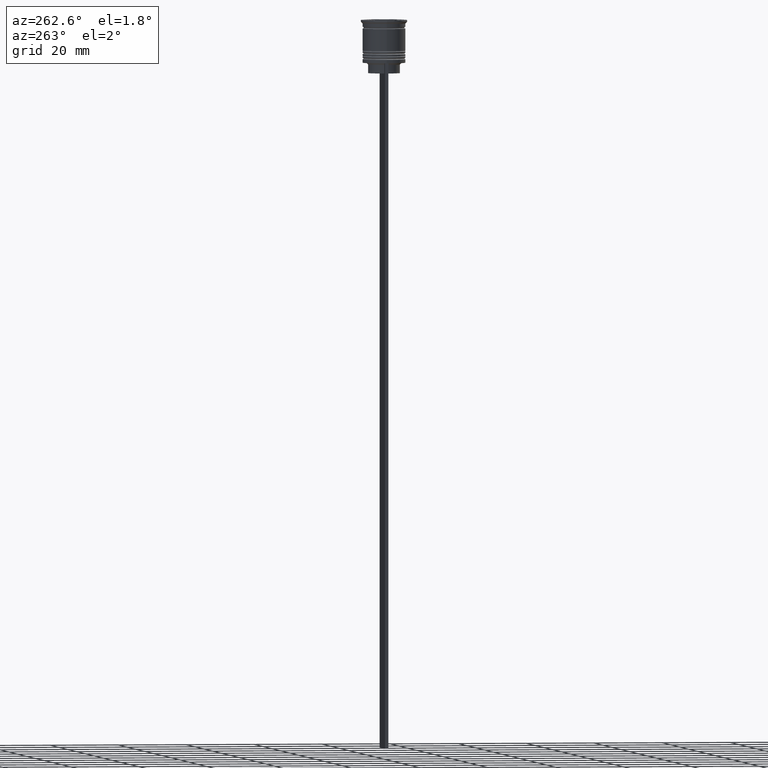
[diagram: clean part render]
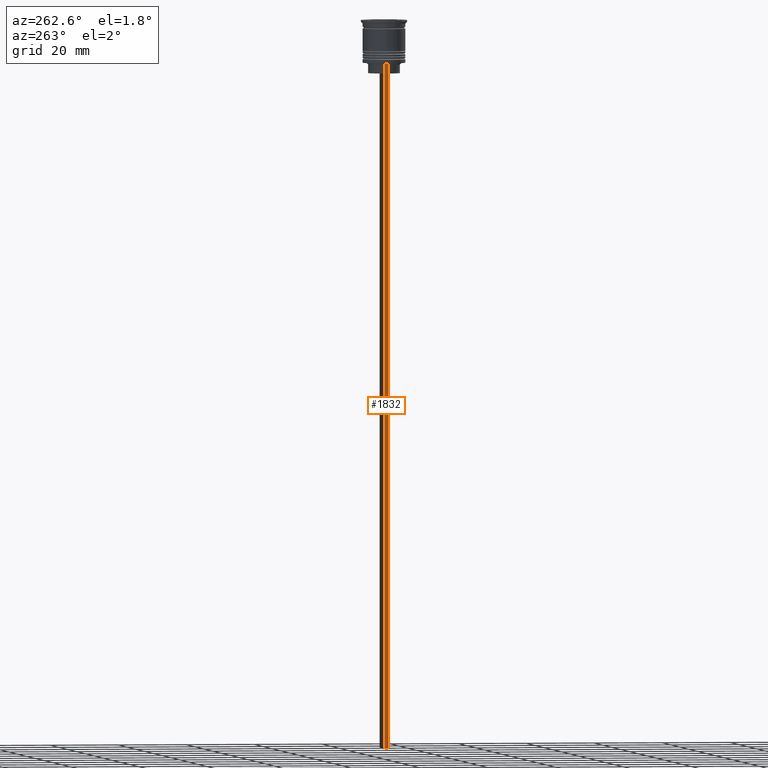
[diagram: same view with one face highlighted and labeled with its STEP entity id]
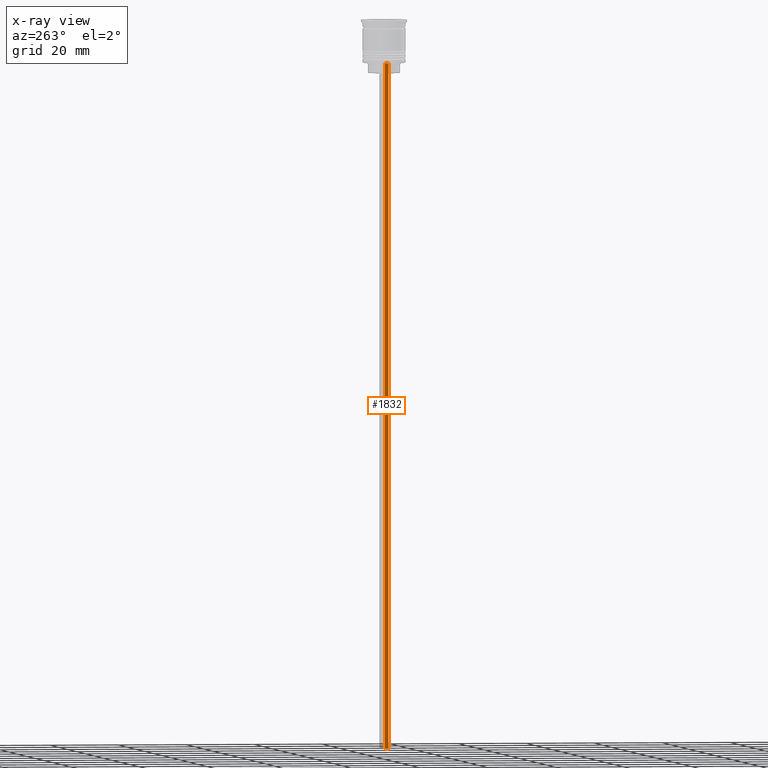
[diagram: x-ray of the same camera — body ghosted, the highlighted face saturated]
A machine part, auxiliary view. The second image highlights one B-rep face of the part: STEP entity #1832.
The next image is the same camera in x-ray: the body ghosted, the highlighted face saturated — about 0% of this face is hidden behind the body in this view.
In plain terms, the highlighted planar face has unit normal (-1, 0, 0).
Its self-contained STEP definition (entity closure, byte-faithful):
#106 = VECTOR ( 'NONE', #691, 1000.000000000000000 ) ;
#201 = LINE ( 'NONE', #2043, #245 ) ;
#245 = VECTOR ( 'NONE', #1871, 1000.000000000000000 ) ;
#254 = FACE_OUTER_BOUND ( 'NONE', #2182, .T. ) ;
#269 = VERTEX_POINT ( 'NONE', #1969 ) ;
#307 = VERTEX_POINT ( 'NONE', #1216 ) ;
#403 = AXIS2_PLACEMENT_3D ( 'NONE', #1482, #1345, #2213 ) ;
#410 = VERTEX_POINT ( 'NONE', #509 ) ;
#509 = CARTESIAN_POINT ( 'NONE',  ( -5.999999999999983125, -0.5000000000000017764, -12.50000000000000000 ) ) ;
#594 = DIRECTION ( 'NONE',  ( 0.000000000000000000, 0.000000000000000000, -1.000000000000000000 ) ) ;
#605 = ORIENTED_EDGE ( 'NONE', *, *, #2224, .F. ) ;
#691 = DIRECTION ( 'NONE',  ( 0.000000000000000000, -1.000000000000000000, 0.000000000000000000 ) ) ;
#753 = VERTEX_POINT ( 'NONE', #1948 ) ;
#861 = LINE ( 'NONE', #1049, #1920 ) ;
#938 = EDGE_CURVE ( 'NONE', #269, #307, #861, .T. ) ;
#964 = CARTESIAN_POINT ( 'NONE',  ( -5.999999999999983125, 0.4999999999999982792, -0.4584054212077061097 ) ) ;
#982 = PLANE ( 'NONE',  #403 ) ;
#1029 = EDGE_CURVE ( 'NONE', #410, #269, #201, .T. ) ;
#1049 = CARTESIAN_POINT ( 'NONE',  ( -5.999999999999983125, -0.5000000000000017764, -212.5000000000000284 ) ) ;
#1216 = CARTESIAN_POINT ( 'NONE',  ( -5.999999999999983125, 0.4999999999999982792, -212.5000000000000284 ) ) ;
#1265 = ORIENTED_EDGE ( 'NONE', *, *, #1470, .T. ) ;
#1345 = DIRECTION ( 'NONE',  ( -1.000000000000000000, 0.000000000000000000, 0.000000000000000000 ) ) ;
#1470 = EDGE_CURVE ( 'NONE', #753, #307, #2266, .T. ) ;
#1482 = CARTESIAN_POINT ( 'NONE',  ( -5.999999999999983125, -0.5000000000000017764, -0.4584054212077061097 ) ) ;
#1615 = VECTOR ( 'NONE', #594, 1000.000000000000000 ) ;
#1746 = ORIENTED_EDGE ( 'NONE', *, *, #938, .F. ) ;
#1832 = ADVANCED_FACE ( 'NONE', ( #254 ), #982, .T. ) ;
#1871 = DIRECTION ( 'NONE',  ( 0.000000000000000000, 0.000000000000000000, -1.000000000000000000 ) ) ;
#1920 = VECTOR ( 'NONE', #1976, 1000.000000000000000 ) ;
#1948 = CARTESIAN_POINT ( 'NONE',  ( -5.999999999999983125, 0.4999999999999985012, -12.50000000000000000 ) ) ;
#1969 = CARTESIAN_POINT ( 'NONE',  ( -5.999999999999983125, -0.5000000000000017764, -212.5000000000000284 ) ) ;
#1976 = DIRECTION ( 'NONE',  ( 0.000000000000000000, 1.000000000000000000, 0.000000000000000000 ) ) ;
#2043 = CARTESIAN_POINT ( 'NONE',  ( -5.999999999999983125, -0.5000000000000017764, -0.4584054212077061097 ) ) ;
#2142 = ORIENTED_EDGE ( 'NONE', *, *, #1029, .F. ) ;
#2182 = EDGE_LOOP ( 'NONE', ( #605, #1265, #1746, #2142 ) ) ;
#2213 = DIRECTION ( 'NONE',  ( 0.000000000000000000, 0.000000000000000000, 1.000000000000000000 ) ) ;
#2224 = EDGE_CURVE ( 'NONE', #753, #410, #2334, .T. ) ;
#2266 = LINE ( 'NONE', #964, #1615 ) ;
#2334 = LINE ( 'NONE', #2344, #106 ) ;
#2344 = CARTESIAN_POINT ( 'NONE',  ( -5.999999999999983125, -0.5000000000000017764, -12.50000000000000000 ) ) ;